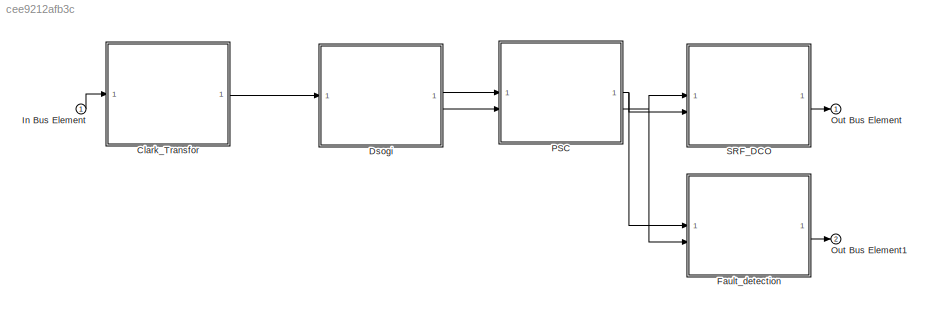
MODEL slx_cee9212afb3c
KIND model
CONFIG AbsTol = auto
CONFIG EnableMultiTasking = off
CONFIG FixedStep = auto
CONFIG MaxStep = auto
CONFIG MinStep = auto
CONFIG RelTol = 1e-3
CONFIG SampleTimeConstraint = Unconstrained
CONFIG SolverName = VariableStepAuto
CONFIG StartTime = 0.0
CONFIG StopTime = 10.0
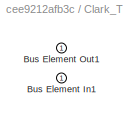
BLOCK [SubSystem] Clark_Transfor
  PortSchema = {"entries":[{"content":{"headerSize":26,"margin":15,"minimumSpacing":25,"sides":[{"content":{"connectorIds":["In1"]},"type":"ConnectorPlacement.EquallySpacedRectSide","uuid":"d98255bb-0e2e-436f-ac53-b41bd6cffae4"},{"content":{"connectorIds":["Out1"],"side":"RIGHT"},"type":"ConnectorPlacement.EquallySpacedRectSide","uuid":"38fda810-9180-46c2-b72f-a00921e55bae"},{"content":{"side":"TOP"},"type":"Con...<+270ch>
BLOCK [Inport] Clark_Transfor/Bus Element In1
BLOCK [Outport] Clark_Transfor/Bus Element Out1
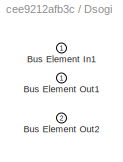
BLOCK [SubSystem] Dsogi
  PortSchema = {"entries":[{"content":{"headerSize":26,"margin":15,"minimumSpacing":25,"sides":[{"content":{"connectorIds":["In1"]},"type":"ConnectorPlacement.EquallySpacedRectSide","uuid":"d98255bb-0e2e-436f-ac53-b41bd6cffae4"},{"content":{"connectorIds":["Out1","Out2"],"side":"RIGHT"},"type":"ConnectorPlacement.EquallySpacedRectSide","uuid":"38fda810-9180-46c2-b72f-a00921e55bae"},{"content":{"side":"TOP"},"typ...<+277ch>
BLOCK [Inport] Dsogi/Bus Element In1
BLOCK [Outport] Dsogi/Bus Element Out1
BLOCK [Outport] Dsogi/Bus Element Out2
  Port = 2
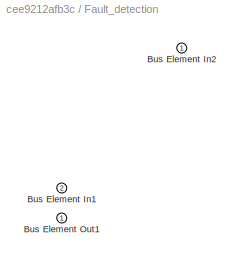
BLOCK [SubSystem] Fault_detection
  PortSchema = {"entries":[{"content":{"headerSize":26,"margin":15,"minimumSpacing":25,"sides":[{"content":{"connectorIds":["In1","In2"]},"type":"ConnectorPlacement.EquallySpacedRectSide","uuid":"d98255bb-0e2e-436f-ac53-b41bd6cffae4"},{"content":{"connectorIds":["Out1"],"side":"RIGHT"},"type":"ConnectorPlacement.EquallySpacedRectSide","uuid":"38fda810-9180-46c2-b72f-a00921e55bae"},{"content":{"side":"TOP"},"type...<+276ch>
BLOCK [Inport] Fault_detection/Bus Element In1
  Port = 2
BLOCK [Inport] Fault_detection/Bus Element In2
BLOCK [Outport] Fault_detection/Bus Element Out1
BLOCK [Inport] In Bus Element
BLOCK [Outport] Out Bus Element
BLOCK [Outport] Out Bus Element1
  Port = 2
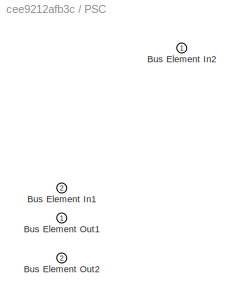
BLOCK [SubSystem] PSC
  PortSchema = {"entries":[{"content":{"headerSize":26,"margin":15,"minimumSpacing":25,"sides":[{"content":{"connectorIds":["In2","In1"]},"type":"ConnectorPlacement.EquallySpacedRectSide","uuid":"d98255bb-0e2e-436f-ac53-b41bd6cffae4"},{"content":{"connectorIds":["Out1","Out2"],"side":"RIGHT"},"type":"ConnectorPlacement.EquallySpacedRectSide","uuid":"38fda810-9180-46c2-b72f-a00921e55bae"},{"content":{"side":"TOP"...<+409ch>
BLOCK [Inport] PSC/Bus Element In1
  Port = 2
BLOCK [Inport] PSC/Bus Element In2
BLOCK [Outport] PSC/Bus Element Out1
BLOCK [Outport] PSC/Bus Element Out2
  Port = 2
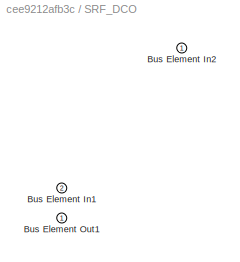
BLOCK [SubSystem] SRF_DCO
  PortSchema = {"entries":[{"content":{"headerSize":26,"margin":15,"minimumSpacing":25,"sides":[{"content":{"connectorIds":["In2","In1"]},"type":"ConnectorPlacement.EquallySpacedRectSide","uuid":"d98255bb-0e2e-436f-ac53-b41bd6cffae4"},{"content":{"connectorIds":["Out1"],"side":"RIGHT"},"type":"ConnectorPlacement.EquallySpacedRectSide","uuid":"38fda810-9180-46c2-b72f-a00921e55bae"},{"content":{"side":"TOP"},"type...<+402ch>
BLOCK [Inport] SRF_DCO/Bus Element In1
  Port = 2
BLOCK [Inport] SRF_DCO/Bus Element In2
BLOCK [Outport] SRF_DCO/Bus Element Out1
LINE Clark_Transfor:1 -> Dsogi:1
LINE Dsogi:1 -> PSC:2
LINE Dsogi:2 -> PSC:1
LINE Fault_detection:1 -> Out Bus Element1:1
LINE In Bus Element:1 -> Clark_Transfor:1
NET PSC:1 -> Fault_detection:1, SRF_DCO:2
NET PSC:2 -> Fault_detection:2, SRF_DCO:1
LINE SRF_DCO:1 -> Out Bus Element:1
note: NET lines group one-source signal fan-out (src -> all destinations, sorted); 1:1 wires keep LINE
